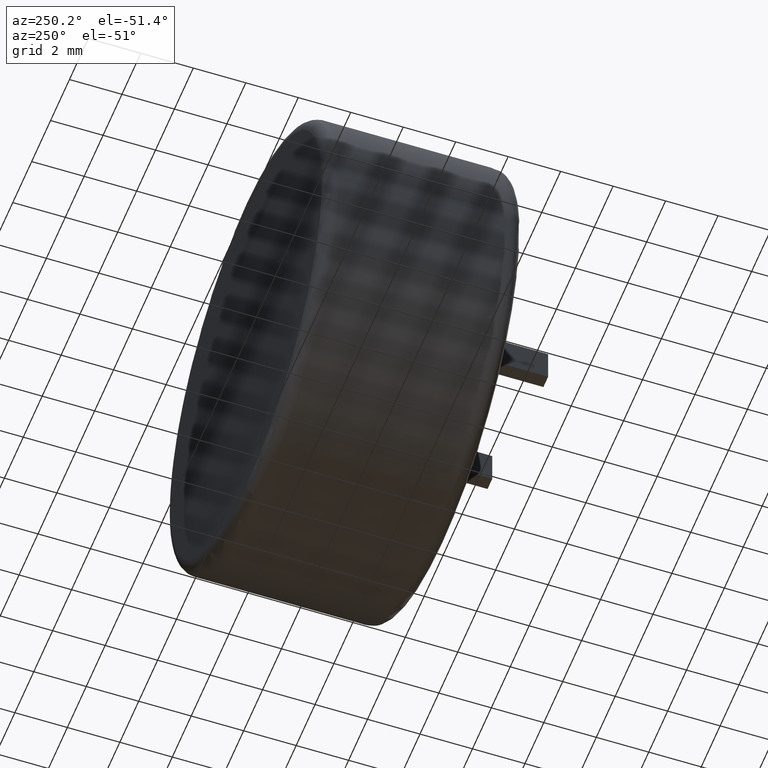
[diagram: clean part render]
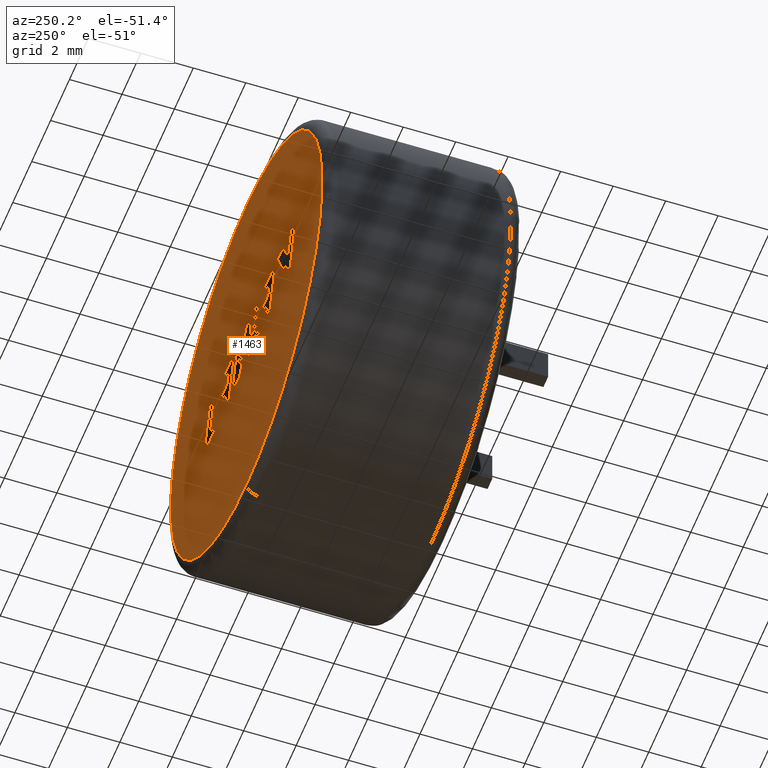
[diagram: same view with one face highlighted and labeled with its STEP entity id]
A machine part, auxiliary view. The second image highlights one B-rep face of the part: STEP entity #1463.
In plain terms, the highlighted planar face has unit normal (0, 1, 0).
Its self-contained STEP definition (entity closure, byte-faithful):
#6 = ORIENTED_EDGE ( 'NONE', *, *, #1012, .F. ) ;
#19 = EDGE_CURVE ( 'NONE', #1287, #2368, #1621, .T. ) ;
#27 = CARTESIAN_POINT ( 'NONE',  ( -0.03453285888950724500, 7.500000000000000000, 0.4772421111879622800 ) ) ;
#32 = EDGE_CURVE ( 'NONE', #2304, #2007, #2736, .T. ) ;
#38 = ORIENTED_EDGE ( 'NONE', *, *, #1102, .F. ) ;
#50 = VECTOR ( 'NONE', #436, 1000.000000000000100 ) ;
#53 = LINE ( 'NONE', #1030, #767 ) ;
#59 = ORIENTED_EDGE ( 'NONE', *, *, #1392, .F. ) ;
#64 = ORIENTED_EDGE ( 'NONE', *, *, #1717, .F. ) ;
#66 = CARTESIAN_POINT ( 'NONE',  ( 3.912071732558238600, 7.500000000000000000, 1.053028994543904000 ) ) ;
#68 = CARTESIAN_POINT ( 'NONE',  ( 0.6798407158200339100, 7.500000000000000000, -0.9631222229663525300 ) ) ;
#76 = LINE ( 'NONE', #276, #2318 ) ;
#82 = CARTESIAN_POINT ( 'NONE',  ( -4.671798733445354100, 7.500000000000000000, -0.9631222229663523000 ) ) ;
#86 = CIRCLE ( 'NONE', #1714, 8.016250000000001200 ) ;
#87 = LINE ( 'NONE', #518, #2166 ) ;
#107 = ORIENTED_EDGE ( 'NONE', *, *, #1782, .F. ) ;
#119 = ORIENTED_EDGE ( 'NONE', *, *, #540, .F. ) ;
#136 = PLANE ( 'NONE',  #2213 ) ;
#143 = DIRECTION ( 'NONE',  ( -0.2762517575166151300, 0.0000000000000000000, 0.9610853065513910200 ) ) ;
#165 = DIRECTION ( 'NONE',  ( 1.000000000000000000, 0.0000000000000000000, -3.775570415932256000E-016 ) ) ;
#175 = EDGE_CURVE ( 'NONE', #209, #1819, #2064, .T. ) ;
#176 = DIRECTION ( 'NONE',  ( 1.000000000000000000, 0.0000000000000000000, -2.506541263247940100E-016 ) ) ;
#184 = VERTEX_POINT ( 'NONE', #1590 ) ;
#192 = CARTESIAN_POINT ( 'NONE',  ( -0.4995563842746180700, 7.500000000000000000, 1.053028994543905300 ) ) ;
#196 = VECTOR ( 'NONE', #1433, 1000.000000000000100 ) ;
#197 = ORIENTED_EDGE ( 'NONE', *, *, #1081, .F. ) ;
#202 = LINE ( 'NONE', #1908, #902 ) ;
#204 = VECTOR ( 'NONE', #2538, 1000.000000000000000 ) ;
#209 = VERTEX_POINT ( 'NONE', #1807 ) ;
#218 = CARTESIAN_POINT ( 'NONE',  ( 2.268643844463263300, 7.500000000000000000, -0.5792907574821812800 ) ) ;
#223 = ORIENTED_EDGE ( 'NONE', *, *, #2300, .F. ) ;
#224 = DIRECTION ( 'NONE',  ( -1.000000000000000000, 0.0000000000000000000, 5.050979426444720200E-016 ) ) ;
#234 = ORIENTED_EDGE ( 'NONE', *, *, #2675, .F. ) ;
#235 = VECTOR ( 'NONE', #1902, 1000.000000000000000 ) ;
#243 = DIRECTION ( 'NONE',  ( -1.000000000000000000, 0.0000000000000000000, 2.284793946200968400E-016 ) ) ;
#247 = DIRECTION ( 'NONE',  ( 1.000000000000000000, 0.0000000000000000000, 0.0000000000000000000 ) ) ;
#248 = VERTEX_POINT ( 'NONE', #2670 ) ;
#249 = CARTESIAN_POINT ( 'NONE',  ( -2.259736175507299100, 7.500000000000000000, 0.1683628157939400200 ) ) ;
#251 = CARTESIAN_POINT ( 'NONE',  ( 3.024744995834479400, 7.500000000000000000, -0.2042869498019201400 ) ) ;
#267 = VECTOR ( 'NONE', #2005, 1000.000000000000000 ) ;
#270 = ORIENTED_EDGE ( 'NONE', *, *, #292, .F. ) ;
#276 = CARTESIAN_POINT ( 'NONE',  ( -3.924721411668132800, 7.500000000000000000, 1.053028994543904900 ) ) ;
#277 = VECTOR ( 'NONE', #1550, 1000.000000000000000 ) ;
#287 = DIRECTION ( 'NONE',  ( -1.000000000000000000, 0.0000000000000000000, 1.448785531673512200E-016 ) ) ;
#290 = CARTESIAN_POINT ( 'NONE',  ( -0.8156049229187412000, 7.500000000000000000, -0.9631222229663523000 ) ) ;
#292 = EDGE_CURVE ( 'NONE', #2349, #1389, #1166, .T. ) ;
#301 = VERTEX_POINT ( 'NONE', #2324 ) ;
#311 = CARTESIAN_POINT ( 'NONE',  ( -0.9143214339711456300, 7.500000000000000000, 1.053028994543905300 ) ) ;
#314 = DIRECTION ( 'NONE',  ( 0.0000000000000000000, 1.000000000000000000, 0.0000000000000000000 ) ) ;
#322 = DIRECTION ( 'NONE',  ( -0.2760118818968560500, 0.0000000000000000000, 0.9611542233438689100 ) ) ;
#325 = CARTESIAN_POINT ( 'NONE',  ( -2.044280021955986900, 7.500000000000000000, -0.5793581909814401500 ) ) ;
#335 = CARTESIAN_POINT ( 'NONE',  ( 0.9900434363040663300, 7.500000000000000000, -0.7505411885221796600 ) ) ;
#338 = LINE ( 'NONE', #1574, #1958 ) ;
#342 = ORIENTED_EDGE ( 'NONE', *, *, #924, .F. ) ;
#351 = VECTOR ( 'NONE', #1305, 1000.000000000000100 ) ;
#352 = LINE ( 'NONE', #1651, #2534 ) ;
#366 = ORIENTED_EDGE ( 'NONE', *, *, #1064, .F. ) ;
#367 = VERTEX_POINT ( 'NONE', #1071 ) ;
#380 = CARTESIAN_POINT ( 'NONE',  ( 0.0000000000000000000, 7.500000000000000000, 0.0000000000000000000 ) ) ;
#382 = ORIENTED_EDGE ( 'NONE', *, *, #2533, .F. ) ;
#384 = DIRECTION ( 'NONE',  ( 1.000000000000000000, 0.0000000000000000000, -2.847054813160298500E-016 ) ) ;
#404 = ORIENTED_EDGE ( 'NONE', *, *, #1542, .F. ) ;
#406 = VECTOR ( 'NONE', #1684, 999.9999999999998900 ) ;
#418 = FACE_BOUND ( 'NONE', #2446, .T. ) ;
#420 = CARTESIAN_POINT ( 'NONE',  ( -3.924721411668132800, 7.500000000000000000, 1.053028994543904900 ) ) ;
#421 = CARTESIAN_POINT ( 'NONE',  ( 3.805490025235814100, 7.500000000000000000, -0.5738409048522489200 ) ) ;
#422 = EDGE_CURVE ( 'NONE', #2252, #1965, #789, .T. ) ;
#423 = CARTESIAN_POINT ( 'NONE',  ( 2.859214151411832100, 7.500000000000000000, 0.6693814386009964100 ) ) ;
#424 = CARTESIAN_POINT ( 'NONE',  ( 2.053187690916773900, 7.500000000000000000, 0.1683628157980141300 ) ) ;
#431 = VECTOR ( 'NONE', #2048, 1000.000000000000000 ) ;
#436 = DIRECTION ( 'NONE',  ( -0.4443210308329209000, 0.0000000000000000000, 0.8958676361826954900 ) ) ;
#439 = VECTOR ( 'NONE', #2484, 1000.000000000000100 ) ;
#449 = VERTEX_POINT ( 'NONE', #2351 ) ;
#465 = VERTEX_POINT ( 'NONE', #910 ) ;
#469 = VECTOR ( 'NONE', #1907, 1000.000000000000200 ) ;
#473 = CARTESIAN_POINT ( 'NONE',  ( -0.3989456066037058200, 7.500000000000000000, -0.7418974402618798700 ) ) ;
#478 = VECTOR ( 'NONE', #143, 1000.000000000000100 ) ;
#479 = CARTESIAN_POINT ( 'NONE',  ( -2.259736175507299100, 7.500000000000000000, 0.1683628157939400200 ) ) ;
#481 = CARTESIAN_POINT ( 'NONE',  ( -2.402511279821104600, 7.500000000000000000, 0.6694550024109757700 ) ) ;
#482 = CARTESIAN_POINT ( 'NONE',  ( 3.303711244630005400, 7.500000000000000000, -0.9631222229663528600 ) ) ;
#487 = DIRECTION ( 'NONE',  ( 0.2762033010288755300, 0.0000000000000000000, -0.9610992334305299400 ) ) ;
#497 = CARTESIAN_POINT ( 'NONE',  ( 0.4721173966834419400, 7.500000000000000000, 1.053028994543904900 ) ) ;
#501 = VECTOR ( 'NONE', #487, 1000.000000000000100 ) ;
#515 = CARTESIAN_POINT ( 'NONE',  ( 3.024744995834479400, 7.500000000000000000, -0.2042869498019201400 ) ) ;
#516 = CARTESIAN_POINT ( 'NONE',  ( 2.159524185522648100, 7.500000000000000000, -0.2042869498019199100 ) ) ;
#518 = CARTESIAN_POINT ( 'NONE',  ( -0.9143214339711456300, 7.500000000000000000, 1.053028994543905300 ) ) ;
#522 = VERTEX_POINT ( 'NONE', #2366 ) ;
#525 = DIRECTION ( 'NONE',  ( 0.2793947940814914300, 0.0000000000000000000, -0.9601763114346035800 ) ) ;
#530 = VECTOR ( 'NONE', #322, 1000.000000000000200 ) ;
#540 = EDGE_CURVE ( 'NONE', #1118, #2304, #2027, .T. ) ;
#541 = DIRECTION ( 'NONE',  ( -0.05596501978067570900, 0.0000000000000000000, 0.9984327301130249100 ) ) ;
#547 = LINE ( 'NONE', #1223, #2720 ) ;
#550 = CARTESIAN_POINT ( 'NONE',  ( -2.153399680898977000, 7.500000000000000000, -0.2043543833022431500 ) ) ;
#554 = EDGE_CURVE ( 'NONE', #2368, #465, #685, .T. ) ;
#560 = CARTESIAN_POINT ( 'NONE',  ( -3.765038890539953000, 7.500000000000000000, -0.04168639734653927600 ) ) ;
#583 = EDGE_CURVE ( 'NONE', #1965, #2618, #889, .T. ) ;
#586 = CARTESIAN_POINT ( 'NONE',  ( -1.016703871901081000, 7.500000000000000000, -0.9631222229663523000 ) ) ;
#592 = VERTEX_POINT ( 'NONE', #290 ) ;
#599 = VECTOR ( 'NONE', #247, 1000.000000000000000 ) ;
#604 = LINE ( 'NONE', #1774, #501 ) ;
#606 = EDGE_CURVE ( 'NONE', #1036, #1118, #338, .T. ) ;
#620 = VERTEX_POINT ( 'NONE', #66 ) ;
#626 = VECTOR ( 'NONE', #1214, 1000.000000000000000 ) ;
#628 = LINE ( 'NONE', #1477, #2197 ) ;
#629 = LINE ( 'NONE', #849, #1095 ) ;
#632 = CARTESIAN_POINT ( 'NONE',  ( 0.6798407158200340300, 7.500000000000000000, -0.9631222229663527500 ) ) ;
#633 = VECTOR ( 'NONE', #2768, 1000.000000000000100 ) ;
#649 = CARTESIAN_POINT ( 'NONE',  ( 0.04300255174971300700, 7.500000000000000000, -0.9631222229663527500 ) ) ;
#650 = VERTEX_POINT ( 'NONE', #311 ) ;
#658 = VECTOR ( 'NONE', #1576, 1000.000000000000000 ) ;
#677 = CARTESIAN_POINT ( 'NONE',  ( 0.0000000000000000000, 7.500000000000000000, 0.0000000000000000000 ) ) ;
#682 = ORIENTED_EDGE ( 'NONE', *, *, #763, .F. ) ;
#684 = DIRECTION ( 'NONE',  ( -1.000000000000000000, 0.0000000000000000000, 0.0000000000000000000 ) ) ;
#685 = LINE ( 'NONE', #2006, #816 ) ;
#697 = CARTESIAN_POINT ( 'NONE',  ( -1.288044003593056700, 7.500000000000000000, -0.2043543833022431500 ) ) ;
#699 = CARTESIAN_POINT ( 'NONE',  ( -0.4995563842746180700, 7.500000000000000000, 1.053028994543905300 ) ) ;
#701 = CARTESIAN_POINT ( 'NONE',  ( 1.564110927417840000, 7.500000000000000000, -0.9631222229663527500 ) ) ;
#703 = VERTEX_POINT ( 'NONE', #1846 ) ;
#720 = CARTESIAN_POINT ( 'NONE',  ( 2.159524185522648100, 7.500000000000000000, -0.2042869498019199100 ) ) ;
#744 = VERTEX_POINT ( 'NONE', #550 ) ;
#745 = ORIENTED_EDGE ( 'NONE', *, *, #583, .F. ) ;
#753 = VERTEX_POINT ( 'NONE', #2465 ) ;
#763 = EDGE_CURVE ( 'NONE', #1954, #1523, #1573, .T. ) ;
#767 = VECTOR ( 'NONE', #1260, 999.9999999999998900 ) ;
#777 = CARTESIAN_POINT ( 'NONE',  ( 2.750351965824065400, 7.500000000000000000, 1.053028994543904400 ) ) ;
#778 = CARTESIAN_POINT ( 'NONE',  ( 0.03793149982259607500, 7.500000000000000000, 1.053028994543905100 ) ) ;
#779 = DIRECTION ( 'NONE',  ( 0.0000000000000000000, -0.0000000000000000000, 1.000000000000000000 ) ) ;
#783 = VERTEX_POINT ( 'NONE', #1933 ) ;
#785 = VERTEX_POINT ( 'NONE', #1393 ) ;
#788 = ORIENTED_EDGE ( 'NONE', *, *, #1033, .F. ) ;
#789 = LINE ( 'NONE', #2154, #1295 ) ;
#795 = VECTOR ( 'NONE', #928, 1000.000000000000200 ) ;
#798 = LINE ( 'NONE', #1271, #351 ) ;
#805 = CARTESIAN_POINT ( 'NONE',  ( 3.192556318522601800, 7.500000000000000000, -0.5766915026842742700 ) ) ;
#809 = EDGE_CURVE ( 'NONE', #783, #1995, #1934, .T. ) ;
#816 = VECTOR ( 'NONE', #1783, 1000.000000000000100 ) ;
#823 = ORIENTED_EDGE ( 'NONE', *, *, #1773, .F. ) ;
#836 = DIRECTION ( 'NONE',  ( -0.3829140317376766900, -0.0000000000000000000, -0.9237839814038764100 ) ) ;
#842 = DIRECTION ( 'NONE',  ( 0.7145695586382339000, -0.0000000000000000000, -0.6995643972269883800 ) ) ;
#849 = CARTESIAN_POINT ( 'NONE',  ( 2.268643844463263300, 7.500000000000000000, -0.5792907574821812800 ) ) ;
#850 = EDGE_CURVE ( 'NONE', #184, #522, #2561, .T. ) ;
#855 = EDGE_CURVE ( 'NONE', #1334, #753, #2168, .T. ) ;
#869 = LINE ( 'NONE', #1206, #478 ) ;
#884 = DIRECTION ( 'NONE',  ( 0.0000000000000000000, 1.000000000000000000, 0.0000000000000000000 ) ) ;
#889 = LINE ( 'NONE', #2643, #2380 ) ;
#890 = EDGE_CURVE ( 'NONE', #620, #1291, #2039, .T. ) ;
#897 = VERTEX_POINT ( 'NONE', #218 ) ;
#902 = VECTOR ( 'NONE', #2134, 1000.000000000000000 ) ;
#909 = VECTOR ( 'NONE', #1381, 1000.000000000000200 ) ;
#910 = CARTESIAN_POINT ( 'NONE',  ( -4.344182283275985800, 7.500000000000000000, -0.1033573956103139300 ) ) ;
#912 = EDGE_CURVE ( 'NONE', #2417, #2285, #604, .T. ) ;
#924 = EDGE_CURVE ( 'NONE', #1361, #2520, #1863, .T. ) ;
#928 = DIRECTION ( 'NONE',  ( -0.2763173343569915700, 0.0000000000000000000, 0.9610664548998921800 ) ) ;
#949 = VERTEX_POINT ( 'NONE', #1309 ) ;
#963 = LINE ( 'NONE', #2102, #1255 ) ;
#976 = CARTESIAN_POINT ( 'NONE',  ( -1.125700924485933100, 7.500000000000000000, -0.5793581909814401500 ) ) ;
#992 = CIRCLE ( 'NONE', #2014, 8.016250000000001200 ) ;
#996 = EDGE_CURVE ( 'NONE', #2285, #209, #1764, .T. ) ;
#1000 = VECTOR ( 'NONE', #2204, 1000.000000000000000 ) ;
#1003 = CARTESIAN_POINT ( 'NONE',  ( -3.487335487235283500, 7.500000000000000000, -0.9631222229663523000 ) ) ;
#1011 = CARTESIAN_POINT ( 'NONE',  ( -2.506168825485704900, 7.500000000000000000, -0.9631222229663520800 ) ) ;
#1012 = EDGE_CURVE ( 'NONE', #753, #744, #1830, .T. ) ;
#1015 = ORIENTED_EDGE ( 'NONE', *, *, #1874, .T. ) ;
#1021 = LINE ( 'NONE', #497, #2029 ) ;
#1026 = VECTOR ( 'NONE', #684, 1000.000000000000000 ) ;
#1030 = CARTESIAN_POINT ( 'NONE',  ( -1.125700924485933100, 7.500000000000000000, -0.5793581909814401500 ) ) ;
#1032 = LINE ( 'NONE', #1037, #2362 ) ;
#1033 = EDGE_CURVE ( 'NONE', #1587, #783, #1734, .T. ) ;
#1036 = VERTEX_POINT ( 'NONE', #473 ) ;
#1037 = CARTESIAN_POINT ( 'NONE',  ( 2.053187690916773900, 7.500000000000000000, 0.1683628157980141300 ) ) ;
#1038 = DIRECTION ( 'NONE',  ( 0.9999999968487352000, 0.0000000000000000000, 7.938847109754407800E-005 ) ) ;
#1044 = CARTESIAN_POINT ( 'NONE',  ( 1.564110927417840000, 7.500000000000000000, -0.9631222229663527500 ) ) ;
#1053 = CARTESIAN_POINT ( 'NONE',  ( -1.016703871901081000, 7.500000000000000000, -0.9631222229663523000 ) ) ;
#1058 = LINE ( 'NONE', #2519, #439 ) ;
#1064 = EDGE_CURVE ( 'NONE', #1325, #2252, #628, .T. ) ;
#1071 = CARTESIAN_POINT ( 'NONE',  ( -4.364136469712908800, 7.500000000000000000, -0.04168639734652045800 ) ) ;
#1081 = EDGE_CURVE ( 'NONE', #1291, #2417, #963, .T. ) ;
#1087 = DIRECTION ( 'NONE',  ( 0.3725077383644269700, -0.0000000000000000000, 0.9280290862136917300 ) ) ;
#1095 = VECTOR ( 'NONE', #2555, 999.9999999999998900 ) ;
#1102 = EDGE_CURVE ( 'NONE', #744, #1954, #2714, .T. ) ;
#1118 = VERTEX_POINT ( 'NONE', #192 ) ;
#1134 = CARTESIAN_POINT ( 'NONE',  ( 3.805490025235814100, 7.500000000000000000, -0.5738409048522489200 ) ) ;
#1143 = EDGE_CURVE ( 'NONE', #1324, #1731, #2456, .T. ) ;
#1151 = ORIENTED_EDGE ( 'NONE', *, *, #606, .F. ) ;
#1160 = CARTESIAN_POINT ( 'NONE',  ( 5.043569033575890300, 7.500000000000000000, -0.9631222229663530800 ) ) ;
#1162 = LINE ( 'NONE', #1877, #196 ) ;
#1166 = LINE ( 'NONE', #1053, #235 ) ;
#1171 = DIRECTION ( 'NONE',  ( 1.000000000000000000, -0.0000000000000000000, 1.096870650732911000E-013 ) ) ;
#1185 = ORIENTED_EDGE ( 'NONE', *, *, #2663, .F. ) ;
#1189 = CARTESIAN_POINT ( 'NONE',  ( -5.251205731465742800, 7.500000000000000000, 1.053028994543842500 ) ) ;
#1202 = VECTOR ( 'NONE', #243, 1000.000000000000000 ) ;
#1206 = CARTESIAN_POINT ( 'NONE',  ( -0.8156049229187412000, 7.500000000000000000, -0.9631222229663523000 ) ) ;
#1210 = LINE ( 'NONE', #1484, #2174 ) ;
#1214 = DIRECTION ( 'NONE',  ( -0.2765379750249959400, 0.0000000000000000000, 0.9610029908221278100 ) ) ;
#1218 = ORIENTED_EDGE ( 'NONE', *, *, #2496, .F. ) ;
#1220 = ORIENTED_EDGE ( 'NONE', *, *, #2666, .F. ) ;
#1221 = DIRECTION ( 'NONE',  ( 0.2729786930695173900, 0.0000000000000000000, -0.9620200793798735500 ) ) ;
#1223 = CARTESIAN_POINT ( 'NONE',  ( 3.337746768091752500, 7.500000000000000000, 1.053028994543904200 ) ) ;
#1224 = ORIENTED_EDGE ( 'NONE', *, *, #2018, .F. ) ;
#1255 = VECTOR ( 'NONE', #1038, 1000.000000000000100 ) ;
#1260 = DIRECTION ( 'NONE',  ( 0.2732148821745903900, 0.0000000000000000000, -0.9619530280415592400 ) ) ;
#1261 = LINE ( 'NONE', #479, #1000 ) ;
#1271 = CARTESIAN_POINT ( 'NONE',  ( -4.364136469712908800, 7.500000000000000000, -0.04168639734652045800 ) ) ;
#1277 = ORIENTED_EDGE ( 'NONE', *, *, #2182, .T. ) ;
#1283 = CARTESIAN_POINT ( 'NONE',  ( -3.765038890539953000, 7.500000000000000000, -0.04168639734653927600 ) ) ;
#1287 = VERTEX_POINT ( 'NONE', #1910 ) ;
#1290 = CARTESIAN_POINT ( 'NONE',  ( -1.273190244891335900, 7.500000000000000000, 1.053028994543905300 ) ) ;
#1291 = VERTEX_POINT ( 'NONE', #1308 ) ;
#1295 = VECTOR ( 'NONE', #1960, 1000.000000000000100 ) ;
#1302 = LINE ( 'NONE', #632, #50 ) ;
#1304 = EDGE_CURVE ( 'NONE', #1995, #1287, #1210, .T. ) ;
#1305 = DIRECTION ( 'NONE',  ( 0.2755265765475025100, -0.0000000000000000000, -0.9612934544747577800 ) ) ;
#1308 = CARTESIAN_POINT ( 'NONE',  ( 4.379680122707077800, 7.500000000000000000, -0.5738409048472185000 ) ) ;
#1309 = CARTESIAN_POINT ( 'NONE',  ( 0.04300255174971300700, 7.500000000000000000, -0.9631222229663527500 ) ) ;
#1324 = VERTEX_POINT ( 'NONE', #481 ) ;
#1325 = VERTEX_POINT ( 'NONE', #2239 ) ;
#1330 = DIRECTION ( 'NONE',  ( 0.0000000000000000000, 0.0000000000000000000, 1.000000000000000000 ) ) ;
#1334 = VERTEX_POINT ( 'NONE', #1918 ) ;
#1335 = CARTESIAN_POINT ( 'NONE',  ( 1.227090569557494300, 7.500000000000000000, 1.053028994543904900 ) ) ;
#1336 = VECTOR ( 'NONE', #2728, 1000.000000000000000 ) ;
#1337 = VECTOR ( 'NONE', #1221, 1000.000000000000000 ) ;
#1344 = DIRECTION ( 'NONE',  ( 0.0000000000000000000, 0.0000000000000000000, 1.000000000000000000 ) ) ;
#1345 = FACE_BOUND ( 'NONE', #1879, .T. ) ;
#1347 = DIRECTION ( 'NONE',  ( -1.000000000000000000, 0.0000000000000000000, 2.506186073112944800E-016 ) ) ;
#1359 = CARTESIAN_POINT ( 'NONE',  ( 1.807006385584198200, 7.500000000000000000, -0.9631222229663527500 ) ) ;
#1361 = VERTEX_POINT ( 'NONE', #515 ) ;
#1376 = ORIENTED_EDGE ( 'NONE', *, *, #2240, .F. ) ;
#1378 = CARTESIAN_POINT ( 'NONE',  ( 0.9900434363040663300, 7.500000000000000000, -0.7505411885221796600 ) ) ;
#1381 = DIRECTION ( 'NONE',  ( 0.9999891854650020400, 0.0000000000000000000, 0.004650693823678137000 ) ) ;
#1389 = VERTEX_POINT ( 'NONE', #2021 ) ;
#1392 = EDGE_CURVE ( 'NONE', #1588, #2615, #2074, .T. ) ;
#1393 = CARTESIAN_POINT ( 'NONE',  ( 0.4721173966834419400, 7.500000000000000000, 1.053028994543904900 ) ) ;
#1411 = DIRECTION ( 'NONE',  ( 0.2745159998572669300, 0.0000000000000000000, -0.9615825319869143500 ) ) ;
#1433 = DIRECTION ( 'NONE',  ( 0.05375259206908298400, 0.0000000000000000000, -0.9985542843760947300 ) ) ;
#1456 = CARTESIAN_POINT ( 'NONE',  ( 1.227090569557494300, 7.500000000000000000, 1.053028994543904900 ) ) ;
#1463 = ADVANCED_FACE ( 'NONE', ( #418, #1345, #2691, #2661 ), #136, .T. ) ;
#1470 = VECTOR ( 'NONE', #1347, 1000.000000000000000 ) ;
#1477 = CARTESIAN_POINT ( 'NONE',  ( -4.671798733445354100, 7.500000000000000000, -0.9631222229663523000 ) ) ;
#1483 = EDGE_CURVE ( 'NONE', #592, #703, #869, .T. ) ;
#1484 = CARTESIAN_POINT ( 'NONE',  ( -2.823838918333584600, 7.500000000000000000, -0.9631222229663523000 ) ) ;
#1506 = VECTOR ( 'NONE', #836, 1000.000000000000100 ) ;
#1511 = ORIENTED_EDGE ( 'NONE', *, *, #32, .F. ) ;
#1523 = VERTEX_POINT ( 'NONE', #976 ) ;
#1524 = ORIENTED_EDGE ( 'NONE', *, *, #890, .F. ) ;
#1542 = EDGE_CURVE ( 'NONE', #2312, #620, #547, .T. ) ;
#1549 = CARTESIAN_POINT ( 'NONE',  ( -3.086335984546776600, 7.500000000000000000, 1.053028994543905700 ) ) ;
#1550 = DIRECTION ( 'NONE',  ( 0.2762437428917315400, 0.0000000000000000000, -0.9610876102172824000 ) ) ;
#1557 = EDGE_CURVE ( 'NONE', #522, #1656, #352, .T. ) ;
#1567 = LINE ( 'NONE', #1290, #599 ) ;
#1573 = LINE ( 'NONE', #1713, #204 ) ;
#1574 = CARTESIAN_POINT ( 'NONE',  ( -0.3989456066037058200, 7.500000000000000000, -0.7418974402618798700 ) ) ;
#1576 = DIRECTION ( 'NONE',  ( -0.2764273280489769100, 0.0000000000000000000, 0.9610348236706635100 ) ) ;
#1578 = EDGE_CURVE ( 'NONE', #1656, #1788, #1032, .T. ) ;
#1587 = VERTEX_POINT ( 'NONE', #420 ) ;
#1588 = VERTEX_POINT ( 'NONE', #805 ) ;
#1590 = CARTESIAN_POINT ( 'NONE',  ( 2.859214151411832100, 7.500000000000000000, 0.6693814386009964100 ) ) ;
#1605 = LINE ( 'NONE', #2486, #1968 ) ;
#1619 = VERTEX_POINT ( 'NONE', #1044 ) ;
#1621 = LINE ( 'NONE', #1003, #431 ) ;
#1651 = CARTESIAN_POINT ( 'NONE',  ( 1.910155113253702200, 7.500000000000000000, 0.6693814386009966400 ) ) ;
#1656 = VERTEX_POINT ( 'NONE', #424 ) ;
#1668 = LINE ( 'NONE', #701, #2325 ) ;
#1682 = ORIENTED_EDGE ( 'NONE', *, *, #1304, .F. ) ;
#1684 = DIRECTION ( 'NONE',  ( 0.2793947940878295200, 0.0000000000000000000, -0.9601763114327595000 ) ) ;
#1685 = CARTESIAN_POINT ( 'NONE',  ( -4.677904531710408900, 7.500000000000000000, 1.053028994543905300 ) ) ;
#1688 = CARTESIAN_POINT ( 'NONE',  ( -1.394503104559656100, 7.500000000000000000, 0.1683628157939400200 ) ) ;
#1692 = EDGE_CURVE ( 'NONE', #2618, #367, #798, .T. ) ;
#1707 = DIRECTION ( 'NONE',  ( 0.2746918797667231600, 0.0000000000000000000, -0.9615323037684299100 ) ) ;
#1713 = CARTESIAN_POINT ( 'NONE',  ( -2.044280021955986900, 7.500000000000000000, -0.5793581909814401500 ) ) ;
#1714 = AXIS2_PLACEMENT_3D ( 'NONE', #2398, #314, #1344 ) ;
#1717 = EDGE_CURVE ( 'NONE', #949, #592, #1737, .T. ) ;
#1731 = VERTEX_POINT ( 'NONE', #249 ) ;
#1734 = LINE ( 'NONE', #2188, #1336 ) ;
#1737 = LINE ( 'NONE', #649, #2003 ) ;
#1751 = ORIENTED_EDGE ( 'NONE', *, *, #1578, .F. ) ;
#1754 = ORIENTED_EDGE ( 'NONE', *, *, #850, .F. ) ;
#1762 = LINE ( 'NONE', #1011, #626 ) ;
#1764 = LINE ( 'NONE', #482, #2750 ) ;
#1773 = EDGE_CURVE ( 'NONE', #1619, #2256, #1668, .T. ) ;
#1774 = CARTESIAN_POINT ( 'NONE',  ( 4.931683720037595400, 7.500000000000000000, -0.5737970821254480000 ) ) ;
#1782 = EDGE_CURVE ( 'NONE', #1731, #1334, #1261, .T. ) ;
#1783 = DIRECTION ( 'NONE',  ( -0.7059037656364859400, -0.0000000000000000000, 0.7083077534943613700 ) ) ;
#1788 = VERTEX_POINT ( 'NONE', #1990 ) ;
#1807 = CARTESIAN_POINT ( 'NONE',  ( 1.807006385584198200, 7.500000000000000000, -0.9631222229663527500 ) ) ;
#1819 = VERTEX_POINT ( 'NONE', #1335 ) ;
#1826 = VERTEX_POINT ( 'NONE', #1549 ) ;
#1829 = ORIENTED_EDGE ( 'NONE', *, *, #2377, .F. ) ;
#1830 = LINE ( 'NONE', #697, #1026 ) ;
#1838 = EDGE_CURVE ( 'NONE', #2615, #2312, #1899, .T. ) ;
#1846 = CARTESIAN_POINT ( 'NONE',  ( -1.284868498917413500, 7.500000000000000000, 0.6694550024109757700 ) ) ;
#1853 = ORIENTED_EDGE ( 'NONE', *, *, #19, .F. ) ;
#1854 = CARTESIAN_POINT ( 'NONE',  ( 3.337746768091752500, 7.500000000000000000, 1.053028994543904200 ) ) ;
#1863 = LINE ( 'NONE', #251, #1470 ) ;
#1874 = EDGE_CURVE ( 'NONE', #301, #2396, #86, .T. ) ;
#1877 = CARTESIAN_POINT ( 'NONE',  ( -0.03453285888950724500, 7.500000000000000000, 0.4772421111879622800 ) ) ;
#1879 = EDGE_LOOP ( 'NONE', ( #823, #1220, #1218, #2504, #1511, #119, #1151, #2412, #2371, #1829, #270, #2467, #682, #38, #6, #2387, #107, #1920, #2729, #1881, #64, #2217, #1185 ) ) ;
#1881 = ORIENTED_EDGE ( 'NONE', *, *, #1483, .F. ) ;
#1883 = CARTESIAN_POINT ( 'NONE',  ( -2.153399680898977000, 7.500000000000000000, -0.2043543833022431500 ) ) ;
#1899 = LINE ( 'NONE', #1134, #795 ) ;
#1902 = DIRECTION ( 'NONE',  ( -1.000000000000000000, 0.0000000000000000000, 1.455827704943586500E-016 ) ) ;
#1907 = DIRECTION ( 'NONE',  ( 0.2740217765954067200, 0.0000000000000000000, -0.9617234872620595800 ) ) ;
#1908 = CARTESIAN_POINT ( 'NONE',  ( 0.9844525863630282400, 7.500000000000000000, 1.053028994543904600 ) ) ;
#1910 = CARTESIAN_POINT ( 'NONE',  ( -2.823838918333584600, 7.500000000000000000, -0.9631222229663523000 ) ) ;
#1918 = CARTESIAN_POINT ( 'NONE',  ( -1.394503104559656100, 7.500000000000000000, 0.1683628157939400200 ) ) ;
#1920 = ORIENTED_EDGE ( 'NONE', *, *, #1143, .F. ) ;
#1931 = ORIENTED_EDGE ( 'NONE', *, *, #1692, .F. ) ;
#1933 = CARTESIAN_POINT ( 'NONE',  ( -3.311272758248907000, 7.500000000000000000, 1.053028994543904900 ) ) ;
#1934 = LINE ( 'NONE', #1283, #1506 ) ;
#1954 = VERTEX_POINT ( 'NONE', #325 ) ;
#1958 = VECTOR ( 'NONE', #541, 1000.000000000000100 ) ;
#1960 = DIRECTION ( 'NONE',  ( -0.2762033010252001900, -0.0000000000000000000, 0.9610992334315862100 ) ) ;
#1965 = VERTEX_POINT ( 'NONE', #1189 ) ;
#1968 = VECTOR ( 'NONE', #1707, 1000.000000000000000 ) ;
#1989 = ORIENTED_EDGE ( 'NONE', *, *, #809, .F. ) ;
#1990 = CARTESIAN_POINT ( 'NONE',  ( 2.918285894870225900, 7.500000000000000000, 0.1683628157980139000 ) ) ;
#1994 = VECTOR ( 'NONE', #384, 1000.000000000000000 ) ;
#1995 = VERTEX_POINT ( 'NONE', #560 ) ;
#2003 = VECTOR ( 'NONE', #224, 1000.000000000000000 ) ;
#2005 = DIRECTION ( 'NONE',  ( -1.000000000000000000, 0.0000000000000000000, 0.0000000000000000000 ) ) ;
#2006 = CARTESIAN_POINT ( 'NONE',  ( -4.344182283275985800, 7.500000000000000000, -0.1033573956103139300 ) ) ;
#2007 = VERTEX_POINT ( 'NONE', #335 ) ;
#2014 = AXIS2_PLACEMENT_3D ( 'NONE', #677, #884, #1330 ) ;
#2018 = EDGE_CURVE ( 'NONE', #1788, #1361, #1605, .T. ) ;
#2021 = CARTESIAN_POINT ( 'NONE',  ( -2.506168825485704900, 7.500000000000000000, -0.9631222229663520800 ) ) ;
#2023 = DIRECTION ( 'NONE',  ( 1.000000000000000000, 0.0000000000000000000, -4.232393926185561900E-016 ) ) ;
#2027 = LINE ( 'NONE', #699, #2447 ) ;
#2029 = VECTOR ( 'NONE', #2023, 1000.000000000000000 ) ;
#2033 = ORIENTED_EDGE ( 'NONE', *, *, #2090, .F. ) ;
#2039 = LINE ( 'NONE', #2307, #277 ) ;
#2048 = DIRECTION ( 'NONE',  ( -1.000000000000000000, -0.0000000000000000000, -0.0000000000000000000 ) ) ;
#2056 = DIRECTION ( 'NONE',  ( 0.4668459304955212000, 0.0000000000000000000, -0.8843386665637610300 ) ) ;
#2057 = ORIENTED_EDGE ( 'NONE', *, *, #2348, .F. ) ;
#2064 = LINE ( 'NONE', #1359, #658 ) ;
#2074 = LINE ( 'NONE', #2233, #909 ) ;
#2079 = DIRECTION ( 'NONE',  ( -1.000000000000000000, -0.0000000000000000000, -0.0000000000000000000 ) ) ;
#2083 = DIRECTION ( 'NONE',  ( 0.0000000000000000000, 1.000000000000000000, 0.0000000000000000000 ) ) ;
#2090 = EDGE_CURVE ( 'NONE', #248, #184, #2097, .T. ) ;
#2096 = CARTESIAN_POINT ( 'NONE',  ( 0.03793149982259607500, 7.500000000000000000, 1.053028994543905100 ) ) ;
#2097 = LINE ( 'NONE', #777, #1337 ) ;
#2102 = CARTESIAN_POINT ( 'NONE',  ( 4.379680122707077800, 7.500000000000000000, -0.5738409048472185000 ) ) ;
#2133 = CARTESIAN_POINT ( 'NONE',  ( -2.402511279821104600, 7.500000000000000000, 0.6694550024109757700 ) ) ;
#2134 = DIRECTION ( 'NONE',  ( 0.2763139702539117400, 0.0000000000000000000, -0.9610674221107072800 ) ) ;
#2154 = CARTESIAN_POINT ( 'NONE',  ( -5.251205731465742800, 7.500000000000000000, 1.053028994543842500 ) ) ;
#2166 = VECTOR ( 'NONE', #2435, 1000.000000000000200 ) ;
#2168 = LINE ( 'NONE', #1688, #633 ) ;
#2174 = VECTOR ( 'NONE', #842, 1000.000000000000000 ) ;
#2182 = EDGE_CURVE ( 'NONE', #2396, #301, #992, .T. ) ;
#2188 = CARTESIAN_POINT ( 'NONE',  ( -3.311272758248907000, 7.500000000000000000, 1.053028994543904900 ) ) ;
#2192 = VERTEX_POINT ( 'NONE', #27 ) ;
#2194 = EDGE_CURVE ( 'NONE', #1826, #650, #1567, .T. ) ;
#2195 = LINE ( 'NONE', #1456, #1994 ) ;
#2197 = VECTOR ( 'NONE', #2079, 1000.000000000000000 ) ;
#2204 = DIRECTION ( 'NONE',  ( 1.000000000000000000, 0.0000000000000000000, 0.0000000000000000000 ) ) ;
#2213 = AXIS2_PLACEMENT_3D ( 'NONE', #380, #2083, #779 ) ;
#2217 = ORIENTED_EDGE ( 'NONE', *, *, #2330, .F. ) ;
#2219 = ORIENTED_EDGE ( 'NONE', *, *, #1838, .F. ) ;
#2233 = CARTESIAN_POINT ( 'NONE',  ( 3.192556318522602200, 7.500000000000000000, -0.5766915026842742700 ) ) ;
#2239 = CARTESIAN_POINT ( 'NONE',  ( -4.097731242331414100, 7.500000000000000000, -0.9631222229663523000 ) ) ;
#2240 = EDGE_CURVE ( 'NONE', #367, #1587, #76, .T. ) ;
#2252 = VERTEX_POINT ( 'NONE', #82 ) ;
#2253 = LINE ( 'NONE', #2532, #267 ) ;
#2256 = VERTEX_POINT ( 'NONE', #68 ) ;
#2272 = EDGE_CURVE ( 'NONE', #2007, #785, #2283, .T. ) ;
#2274 = CARTESIAN_POINT ( 'NONE',  ( -3.487335487235283500, 7.500000000000000000, -0.9631222229663523000 ) ) ;
#2282 = EDGE_LOOP ( 'NONE', ( #2705, #366, #2057, #2449, #1853, #1682, #1989, #788, #1376, #1931, #745 ) ) ;
#2283 = LINE ( 'NONE', #1378, #530 ) ;
#2285 = VERTEX_POINT ( 'NONE', #1160 ) ;
#2300 = EDGE_CURVE ( 'NONE', #1819, #248, #2195, .T. ) ;
#2304 = VERTEX_POINT ( 'NONE', #2096 ) ;
#2307 = CARTESIAN_POINT ( 'NONE',  ( 3.912071732558238600, 7.500000000000000000, 1.053028994543904000 ) ) ;
#2309 = VECTOR ( 'NONE', #2056, 1000.000000000000200 ) ;
#2312 = VERTEX_POINT ( 'NONE', #1854 ) ;
#2318 = VECTOR ( 'NONE', #1087, 1000.000000000000000 ) ;
#2324 = CARTESIAN_POINT ( 'NONE',  ( 0.0000000000000000000, 7.500000000000000000, 8.016250000000001200 ) ) ;
#2325 = VECTOR ( 'NONE', #2379, 1000.000000000000000 ) ;
#2330 = EDGE_CURVE ( 'NONE', #2192, #949, #1162, .T. ) ;
#2348 = EDGE_CURVE ( 'NONE', #465, #1325, #1058, .T. ) ;
#2349 = VERTEX_POINT ( 'NONE', #586 ) ;
#2351 = CARTESIAN_POINT ( 'NONE',  ( 0.9844525863630282400, 7.500000000000000000, 1.053028994543904600 ) ) ;
#2362 = VECTOR ( 'NONE', #176, 1000.000000000000000 ) ;
#2366 = CARTESIAN_POINT ( 'NONE',  ( 1.910155113253702200, 7.500000000000000000, 0.6693814386009966400 ) ) ;
#2368 = VERTEX_POINT ( 'NONE', #2274 ) ;
#2371 = ORIENTED_EDGE ( 'NONE', *, *, #2194, .F. ) ;
#2377 = EDGE_CURVE ( 'NONE', #1389, #1826, #1762, .T. ) ;
#2379 = DIRECTION ( 'NONE',  ( -1.000000000000000000, 0.0000000000000000000, 0.0000000000000000000 ) ) ;
#2380 = VECTOR ( 'NONE', #1171, 1000.000000000000000 ) ;
#2387 = ORIENTED_EDGE ( 'NONE', *, *, #855, .F. ) ;
#2396 = VERTEX_POINT ( 'NONE', #2698 ) ;
#2398 = CARTESIAN_POINT ( 'NONE',  ( 0.0000000000000000000, 7.500000000000000000, 0.0000000000000000000 ) ) ;
#2400 = ORIENTED_EDGE ( 'NONE', *, *, #175, .F. ) ;
#2412 = ORIENTED_EDGE ( 'NONE', *, *, #2766, .F. ) ;
#2417 = VERTEX_POINT ( 'NONE', #2704 ) ;
#2435 = DIRECTION ( 'NONE',  ( 0.2759782365590740500, 0.0000000000000000000, -0.9611638845408954100 ) ) ;
#2445 = ORIENTED_EDGE ( 'NONE', *, *, #912, .F. ) ;
#2446 = EDGE_LOOP ( 'NONE', ( #234, #382, #342, #1224, #1751, #2648, #1754, #2033, #223, #2400, #2709, #2445, #197, #1524, #404, #2219, #59 ) ) ;
#2447 = VECTOR ( 'NONE', #2621, 1000.000000000000000 ) ;
#2449 = ORIENTED_EDGE ( 'NONE', *, *, #554, .F. ) ;
#2456 = LINE ( 'NONE', #2133, #469 ) ;
#2462 = VECTOR ( 'NONE', #525, 1000.000000000000100 ) ;
#2465 = CARTESIAN_POINT ( 'NONE',  ( -1.288044003593056700, 7.500000000000000000, -0.2043543833022431500 ) ) ;
#2467 = ORIENTED_EDGE ( 'NONE', *, *, #2566, .F. ) ;
#2472 = EDGE_CURVE ( 'NONE', #703, #1324, #2253, .T. ) ;
#2484 = DIRECTION ( 'NONE',  ( 0.2755520632520542200, -0.0000000000000000000, -0.9612861490927329100 ) ) ;
#2486 = CARTESIAN_POINT ( 'NONE',  ( 2.918285894870225900, 7.500000000000000000, 0.1683628157980139000 ) ) ;
#2496 = EDGE_CURVE ( 'NONE', #785, #449, #1021, .T. ) ;
#2504 = ORIENTED_EDGE ( 'NONE', *, *, #2272, .F. ) ;
#2519 = CARTESIAN_POINT ( 'NONE',  ( -4.097731242331414100, 7.500000000000000000, -0.9631222229663523000 ) ) ;
#2520 = VERTEX_POINT ( 'NONE', #720 ) ;
#2532 = CARTESIAN_POINT ( 'NONE',  ( -1.284868498917413500, 7.500000000000000000, 0.6694550024109757700 ) ) ;
#2533 = EDGE_CURVE ( 'NONE', #2520, #897, #2597, .T. ) ;
#2534 = VECTOR ( 'NONE', #1411, 999.9999999999998900 ) ;
#2538 = DIRECTION ( 'NONE',  ( 1.000000000000000000, 0.0000000000000000000, 0.0000000000000000000 ) ) ;
#2555 = DIRECTION ( 'NONE',  ( 0.9999960426590096500, 0.0000000000000000000, 0.002813301676022722900 ) ) ;
#2561 = LINE ( 'NONE', #423, #1202 ) ;
#2566 = EDGE_CURVE ( 'NONE', #1523, #2349, #53, .T. ) ;
#2597 = LINE ( 'NONE', #516, #2462 ) ;
#2605 = EDGE_LOOP ( 'NONE', ( #1015, #1277 ) ) ;
#2615 = VERTEX_POINT ( 'NONE', #421 ) ;
#2618 = VERTEX_POINT ( 'NONE', #1685 ) ;
#2621 = DIRECTION ( 'NONE',  ( 1.000000000000000000, 0.0000000000000000000, -4.034331580539989700E-016 ) ) ;
#2643 = CARTESIAN_POINT ( 'NONE',  ( -4.677904531710408900, 7.500000000000000000, 1.053028994543905300 ) ) ;
#2648 = ORIENTED_EDGE ( 'NONE', *, *, #1557, .F. ) ;
#2661 = FACE_OUTER_BOUND ( 'NONE', #2605, .T. ) ;
#2663 = EDGE_CURVE ( 'NONE', #2256, #2192, #1302, .T. ) ;
#2666 = EDGE_CURVE ( 'NONE', #449, #1619, #202, .T. ) ;
#2670 = CARTESIAN_POINT ( 'NONE',  ( 2.750351965824065400, 7.500000000000000000, 1.053028994543904400 ) ) ;
#2675 = EDGE_CURVE ( 'NONE', #897, #1588, #629, .T. ) ;
#2691 = FACE_BOUND ( 'NONE', #2282, .T. ) ;
#2698 = CARTESIAN_POINT ( 'NONE',  ( 1.011328634820873600E-015, 7.500000000000000000, -8.016250000000001200 ) ) ;
#2704 = CARTESIAN_POINT ( 'NONE',  ( 4.931683720037595400, 7.500000000000000000, -0.5737970821254480000 ) ) ;
#2705 = ORIENTED_EDGE ( 'NONE', *, *, #422, .F. ) ;
#2709 = ORIENTED_EDGE ( 'NONE', *, *, #996, .F. ) ;
#2714 = LINE ( 'NONE', #1883, #406 ) ;
#2720 = VECTOR ( 'NONE', #165, 1000.000000000000000 ) ;
#2728 = DIRECTION ( 'NONE',  ( 1.000000000000000000, -0.0000000000000000000, -0.0000000000000000000 ) ) ;
#2729 = ORIENTED_EDGE ( 'NONE', *, *, #2472, .F. ) ;
#2736 = LINE ( 'NONE', #778, #2309 ) ;
#2750 = VECTOR ( 'NONE', #287, 1000.000000000000000 ) ;
#2766 = EDGE_CURVE ( 'NONE', #650, #1036, #87, .T. ) ;
#2768 = DIRECTION ( 'NONE',  ( 0.2746459304916897800, 0.0000000000000000000, -0.9615454294334480100 ) ) ;